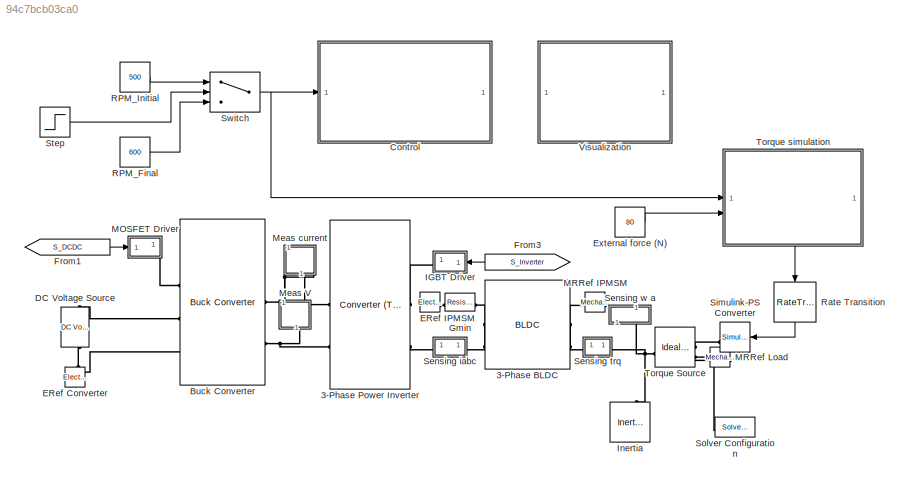
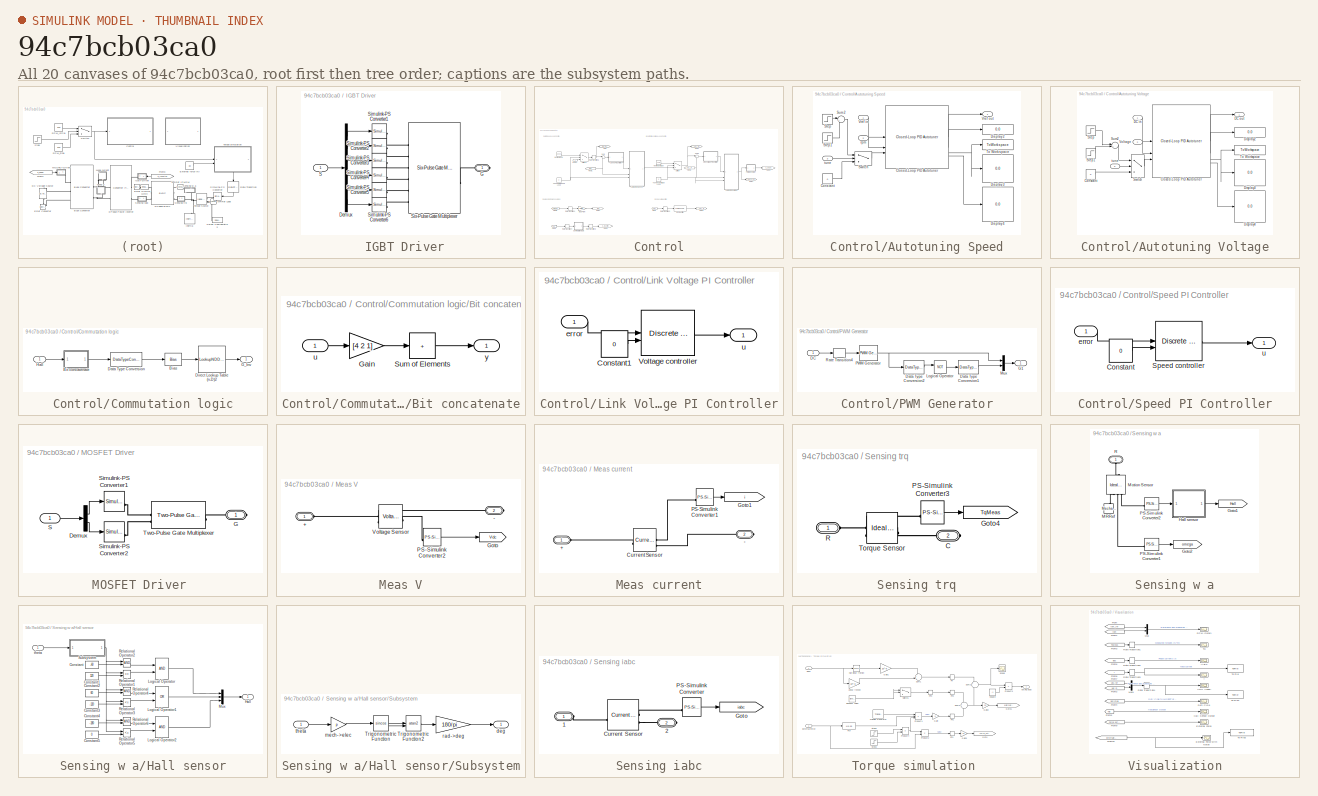
[diagram: thumbnail index - all 20 canvases of the model, root first then tree order]
MODEL slx_94c7bcb03ca0
KIND model
CONFIG AbsTol = auto
CONFIG EnableMultiTasking = on
CONFIG FixedStep = Ts
CONFIG MaxStep = auto
CONFIG MinStep = auto
CONFIG PreLoadFcn = %% Parameters for BLDC Speed Control Example\n\n% This example shows how to control the rotor speed in a BLDC based \n% electrical drive. An ideal torque source provides the load. The Control \n% subsystem uses a PI-based cascade control structure with an outer speed \n% control loop and an inner dc-link voltage control loop. The dc-link \n% voltage is adjusted through a DC-DC buck converter. The BLDC i...<+1036ch>
CONFIG RelTol = 1e-3
CONFIG SampleTimeConstraint = Unconstrained
CONFIG SolverName = FixedStepDiscrete
CONFIG StartTime = 0.0
CONFIG StopTime = 1
BLOCK [Reference]  DC Voltage Source  REF=fl_lib/Electrical/Electrical Sources/DC Voltage Source
  NameLocation = left
  SourceBlock = fl_lib/Electrical/Electrical Sources/DC Voltage Source
  SourceType = DC Voltage Source
BLOCK [SubSystem]  IGBT Driver
  NameLocation = top
BLOCK [Demux]  IGBT Driver/Demux
  Outputs = 6
BLOCK [PMIOPort]  IGBT Driver/G
  Side = Right
BLOCK [Inport]  IGBT Driver/S
BLOCK [Reference]  IGBT Driver/Simulink-PS Converter1  REF=nesl_utility/Simulink-PS
Converter
  SourceBlock = nesl_utility/Simulink-PS\nConverter
  SourceType = Simulink-PS\nConverter
BLOCK [Reference]  IGBT Driver/Simulink-PS Converter2  REF=nesl_utility/Simulink-PS
Converter
  SourceBlock = nesl_utility/Simulink-PS\nConverter
  SourceType = Simulink-PS\nConverter
BLOCK [Reference]  IGBT Driver/Simulink-PS Converter3  REF=nesl_utility/Simulink-PS
Converter
  SourceBlock = nesl_utility/Simulink-PS\nConverter
  SourceType = Simulink-PS\nConverter
BLOCK [Reference]  IGBT Driver/Simulink-PS Converter4  REF=nesl_utility/Simulink-PS
Converter
  SourceBlock = nesl_utility/Simulink-PS\nConverter
  SourceType = Simulink-PS\nConverter
BLOCK [Reference]  IGBT Driver/Simulink-PS Converter5  REF=nesl_utility/Simulink-PS
Converter
  SourceBlock = nesl_utility/Simulink-PS\nConverter
  SourceType = Simulink-PS\nConverter
BLOCK [Reference]  IGBT Driver/Simulink-PS Converter6  REF=nesl_utility/Simulink-PS
Converter
  SourceBlock = nesl_utility/Simulink-PS\nConverter
  SourceType = Simulink-PS\nConverter
BLOCK [Reference]  IGBT Driver/Six-Pulse Gate Multiplexer  REF=ee_lib/Semiconductors &
Converters/Converters/Six-Pulse Gate
Multiplexer
  SourceBlock = ee_lib/Semiconductors &\nConverters/Converters/Six-Pulse Gate\nMultiplexer
  SourceType = Six-Pulse Gate\nMultiplexer
BLOCK [Reference] 3-Phase BLDC  REF=ee_lib/Electromechanical/Permanent Magnet/BLDC
  SourceBlock = ee_lib/Electromechanical/Permanent Magnet/BLDC
  SourceType = BLDC
BLOCK [Reference] 3-Phase Power Inverter  REF=ee_lib/Semiconductors &
Converters/Converters/Converter
(Three-Phase)
  SourceBlock = ee_lib/Semiconductors &\nConverters/Converters/Converter\n(Three-Phase)
  SourceType = Converter\n(Three-Phase)
BLOCK [Reference] Buck Converter  REF=ee_lib/Semiconductors &
Converters/Converters/Buck Converter
  SourceBlock = ee_lib/Semiconductors &\nConverters/Converters/Buck Converter
  SourceType = Buck Converter
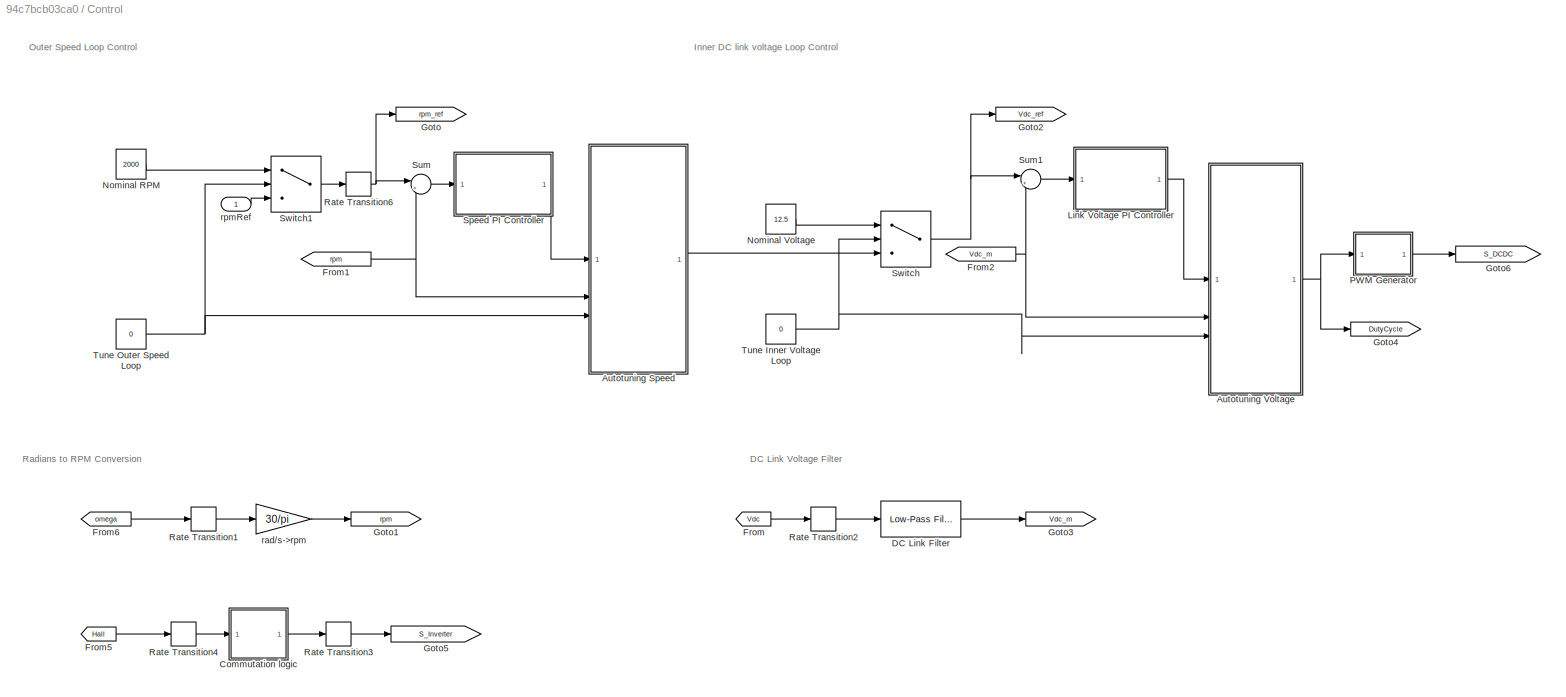
BLOCK [SubSystem] Control
  NameLocation = top
BLOCK [SubSystem] Control/Autotuning Speed
BLOCK [Reference] Control/Autotuning Speed/Closed-Loop PID Autotuner  REF=slctrl_autotuning/Closed-Loop PID Autotuner
  SourceBlock = slctrl_autotuning/Closed-Loop PID Autotuner
  SourceType = ClosedLoopOnlinePIDTuner
BLOCK [Constant] Control/Autotuning Speed/Constant
  Value = 0
BLOCK [Display] Control/Autotuning Speed/Display2
  Decimation = 1
BLOCK [Display] Control/Autotuning Speed/Display3
  Decimation = 1
BLOCK [Display] Control/Autotuning Speed/Display4
  Decimation = 1
BLOCK [Step] Control/Autotuning Speed/Step
  SampleTime = 0
BLOCK [Step] Control/Autotuning Speed/Step1
  After = -1
  SampleTime = 0
  Time = 1.9
BLOCK [Sum] Control/Autotuning Speed/Sum2
  Inputs = |++
BLOCK [Switch] Control/Autotuning Speed/Switch
  Criteria = u2 > Threshold
  InputSameDT = off
  SaturateOnIntegerOverflow = off
BLOCK [ToWorkspace] Control/Autotuning Speed/To Workspace
  FixptAsFi = on
  MaxDataPoints = 1
  SampleTime = -1
  VariableName = SpeedLoopGains
BLOCK [Inport] Control/Autotuning Speed/Vref in
BLOCK [Outport] Control/Autotuning Speed/Vref out
  VectorParamsAs1DForOutWhenUnconnected = off
BLOCK [Inport] Control/Autotuning Speed/rpm
  Port = 2
BLOCK [Inport] Control/Autotuning Speed/tune
  Port = 3
BLOCK [SubSystem] Control/Autotuning Voltage
BLOCK [Reference] Control/Autotuning Voltage/Closed-Loop PID Autotuner  REF=slctrl_autotuning/Closed-Loop PID Autotuner
  SourceBlock = slctrl_autotuning/Closed-Loop PID Autotuner
  SourceType = ClosedLoopOnlinePIDTuner
BLOCK [Constant] Control/Autotuning Voltage/Constant
  Value = 0
BLOCK [Inport] Control/Autotuning Voltage/DC in
BLOCK [Outport] Control/Autotuning Voltage/DC out
  VectorParamsAs1DForOutWhenUnconnected = off
BLOCK [Display] Control/Autotuning Voltage/Display2
  Decimation = 1
BLOCK [Display] Control/Autotuning Voltage/Display3
  Decimation = 1
BLOCK [Display] Control/Autotuning Voltage/Display4
  Decimation = 1
BLOCK [Step] Control/Autotuning Voltage/Step
  SampleTime = 0
BLOCK [Step] Control/Autotuning Voltage/Step1
  After = -1
  SampleTime = 0
  Time = 1.8
BLOCK [Sum] Control/Autotuning Voltage/Sum2
  Inputs = |++
BLOCK [Switch] Control/Autotuning Voltage/Switch
  Criteria = u2 > Threshold
  InputSameDT = off
  SaturateOnIntegerOverflow = off
BLOCK [ToWorkspace] Control/Autotuning Voltage/To Workspace
  FixptAsFi = on
  MaxDataPoints = 1
  SampleTime = -1
  VariableName = VoltageLoopGains
BLOCK [Inport] Control/Autotuning Voltage/Voltage
  Port = 2
BLOCK [Inport] Control/Autotuning Voltage/tune
  Port = 3
BLOCK [SubSystem] Control/Commutation logic
BLOCK [Bias] Control/Commutation logic/Bias
  Bias = -1
  SaturateOnIntegerOverflow = off
BLOCK [SubSystem] Control/Commutation logic/Bit concatenate
BLOCK [Gain] Control/Commutation logic/Bit concatenate/Gain
  Gain = [4 2 1]
  Multiplication = Matrix(K*u)
BLOCK [Sum] Control/Commutation logic/Bit concatenate/Sum of Elements
  IconShape = rectangular
  Inputs = +
BLOCK [Inport] Control/Commutation logic/Bit concatenate/u
BLOCK [Outport] Control/Commutation logic/Bit concatenate/y
  VectorParamsAs1DForOutWhenUnconnected = off
BLOCK [DataTypeConversion] Control/Commutation logic/Data Type Conversion
  RndMeth = Floor
  SaturateOnIntegerOverflow = off
BLOCK [LookupNDDirect] Control/Commutation logic/Direct Lookup Table (n-D)2
  InputsSelectThisObjectFromTable = Vector
  Table = [0 0 0 1 1 0;0 1 1 0 0 0;0 1 0 0 0 1;1 0 0 0 1 0;1 0 1 0 0 0;0 0 0 1 0 1]
BLOCK [Outport] Control/Commutation logic/G_Inv
  VectorParamsAs1DForOutWhenUnconnected = off
BLOCK [Inport] Control/Commutation logic/Hall
BLOCK [Reference] Control/DC Link Filter  REF=eeGeneralControl/Low-Pass Filter
(Discrete or Continuous)
  SourceBlock = eeGeneralControl/Low-Pass Filter\n(Discrete or Continuous)
  SourceType = Low-Pass Filter (Discrete or Continuous)
BLOCK [From] Control/From
  GotoTag = Vdc
  TagVisibility = global
BLOCK [From] Control/From1
  GotoTag = rpm
  TagVisibility = global
BLOCK [From] Control/From2
  GotoTag = Vdc_m
  TagVisibility = global
BLOCK [From] Control/From5
  GotoTag = Hall
  TagVisibility = global
BLOCK [From] Control/From6
  GotoTag = omega
  TagVisibility = global
BLOCK [Goto] Control/Goto
  GotoTag = rpm_ref
  TagVisibility = global
BLOCK [Goto] Control/Goto1
  GotoTag = rpm
  TagVisibility = global
BLOCK [Goto] Control/Goto2
  GotoTag = Vdc_ref
  TagVisibility = global
BLOCK [Goto] Control/Goto3
  GotoTag = Vdc_m
  TagVisibility = global
BLOCK [Goto] Control/Goto4
  GotoTag = DutyCycle
  TagVisibility = global
BLOCK [Goto] Control/Goto5
  GotoTag = S_Inverter
  TagVisibility = global
BLOCK [Goto] Control/Goto6
  GotoTag = S_DCDC
  TagVisibility = global
BLOCK [SubSystem] Control/Link Voltage PI Controller
BLOCK [Constant] Control/Link Voltage PI Controller/Constant1
  SampleTime = Tsc
  Value = 0
BLOCK [Reference] Control/Link Voltage PI Controller/Voltage controller  REF=eeDiscretePi/Discrete PI Controller
with Integral Anti-Windup
  SourceBlock = eeDiscretePi/Discrete PI Controller\nwith Integral Anti-Windup
  SourceType = Discrete PI Controller with Integral Anti-Windup
BLOCK [Inport] Control/Link Voltage PI Controller/error
BLOCK [Outport] Control/Link Voltage PI Controller/u
  VectorParamsAs1DForOutWhenUnconnected = off
BLOCK [Constant] Control/Nominal RPM
  Value = 2000
BLOCK [Constant] Control/Nominal Voltage
  Value = 12.5
BLOCK [SubSystem] Control/PWM Generator
BLOCK [Inport] Control/PWM Generator/DC
BLOCK [DataTypeConversion] Control/PWM Generator/Data Type Conversion1
  RndMeth = Floor
  SaturateOnIntegerOverflow = off
BLOCK [DataTypeConversion] Control/PWM Generator/Data Type Conversion2
  RndMeth = Floor
  SaturateOnIntegerOverflow = off
BLOCK [Outport] Control/PWM Generator/G1
  VectorParamsAs1DForOutWhenUnconnected = off
BLOCK [Logic] Control/PWM Generator/Logical Operator
  AllPortsSameDT = off
  Operator = NOT
  OutDataTypeStr = boolean
BLOCK [Mux] Control/PWM Generator/Mux
  DisplayOption = bar
  Inputs = 2
BLOCK [Reference] Control/PWM Generator/PWM Generator  REF=eePwmGenerator/PWM Generator
  SourceBlock = eePwmGenerator/PWM Generator
  SourceType = PWM Generator
BLOCK [RateTransition] Control/PWM Generator/Rate Transition4
  OutPortSampleTime = Ts
BLOCK [RateTransition] Control/Rate Transition1
BLOCK [RateTransition] Control/Rate Transition2
BLOCK [RateTransition] Control/Rate Transition3
  OutPortSampleTime = Ts
BLOCK [RateTransition] Control/Rate Transition4
  OutPortSampleTime = Tsc
BLOCK [RateTransition] Control/Rate Transition6
BLOCK [SubSystem] Control/Speed PI Controller
BLOCK [Constant] Control/Speed PI Controller/Constant
  SampleTime = Tsc
  Value = 0
BLOCK [Reference] Control/Speed PI Controller/Speed controller  REF=eeDiscretePi/Discrete PI Controller
with Integral Anti-Windup
  SourceBlock = eeDiscretePi/Discrete PI Controller\nwith Integral Anti-Windup
  SourceType = Discrete PI Controller with Integral Anti-Windup
BLOCK [Inport] Control/Speed PI Controller/error
BLOCK [Outport] Control/Speed PI Controller/u
  VectorParamsAs1DForOutWhenUnconnected = off
BLOCK [Sum] Control/Sum
  Inputs = |+-
BLOCK [Sum] Control/Sum1
  Inputs = |+-
BLOCK [Switch] Control/Switch
  Criteria = u2 > Threshold
  InputSameDT = off
  SaturateOnIntegerOverflow = off
BLOCK [Switch] Control/Switch1
  Criteria = u2 > Threshold
  InputSameDT = off
  SaturateOnIntegerOverflow = off
BLOCK [Constant] Control/Tune Inner Voltage Loop
  Value = 0
BLOCK [Constant] Control/Tune Outer Speed Loop
  Value = 0
BLOCK [Gain] Control/rad//s->rpm
  Gain = 30/pi
BLOCK [Inport] Control/rpmRef
BLOCK [Reference] ERef Converter  REF=fl_lib/Electrical/Electrical Elements/Electrical Reference
  NameLocation = right
  SourceBlock = fl_lib/Electrical/Electrical Elements/Electrical Reference
  SourceType = Electrical Reference
BLOCK [Reference] ERef IPMSM  REF=fl_lib/Electrical/Electrical Elements/Electrical Reference
  SourceBlock = fl_lib/Electrical/Electrical Elements/Electrical Reference
  SourceType = Electrical Reference
BLOCK [Constant] External force (N)
  Value = 80
BLOCK [From] From1
  GotoTag = S_DCDC
  TagVisibility = global
BLOCK [From] From3
  GotoTag = S_Inverter
  NameLocation = top
  TagVisibility = global
BLOCK [Reference] Gmin  REF=fl_lib/Electrical/Electrical Elements/Resistor
  SourceBlock = fl_lib/Electrical/Electrical Elements/Resistor
  SourceType = Resistor
BLOCK [Reference] Inertia  REF=fl_lib/Mechanical/Rotational Elements/Inertia
  NameLocation = left
  SourceBlock = fl_lib/Mechanical/Rotational Elements/Inertia
  SourceType = Inertia
BLOCK [SubSystem] MOSFET Driver 
  NameLocation = top
BLOCK [Demux] MOSFET Driver /Demux
  Outputs = 2
BLOCK [PMIOPort] MOSFET Driver /G
  Side = Right
BLOCK [Inport] MOSFET Driver /S
BLOCK [Reference] MOSFET Driver /Simulink-PS Converter1  REF=nesl_utility/Simulink-PS
Converter
  SourceBlock = nesl_utility/Simulink-PS\nConverter
  SourceType = Simulink-PS\nConverter
BLOCK [Reference] MOSFET Driver /Simulink-PS Converter2  REF=nesl_utility/Simulink-PS
Converter
  SourceBlock = nesl_utility/Simulink-PS\nConverter
  SourceType = Simulink-PS\nConverter
BLOCK [Reference] MOSFET Driver /Two-Pulse Gate Multiplexer  REF=ee_lib/Semiconductors &
Converters/Converters/Two-Pulse Gate
Multiplexer
  SourceBlock = ee_lib/Semiconductors &\nConverters/Converters/Two-Pulse Gate\nMultiplexer
  SourceType = Two-Pulse Gate\nMultiplexer
BLOCK [Reference] MRRef IPMSM  REF=fl_lib/Mechanical/Rotational Elements/Mechanical
Rotational Reference
  NameLocation = top
  SourceBlock = fl_lib/Mechanical/Rotational Elements/Mechanical\nRotational Reference
  SourceType = Mechanical\nRotational Reference
BLOCK [Reference] MRRef Load  REF=fl_lib/Mechanical/Rotational Elements/Mechanical
Rotational Reference
  NameLocation = top
  SourceBlock = fl_lib/Mechanical/Rotational Elements/Mechanical\nRotational Reference
  SourceType = Mechanical\nRotational Reference
BLOCK [SubSystem] Meas V
  NameLocation = right
BLOCK [PMIOPort] Meas V/+
  Side = Left
BLOCK [PMIOPort] Meas V/-
  Port = 2
  Side = Right
BLOCK [Goto] Meas V/Goto
  GotoTag = Vdc
  TagVisibility = global
BLOCK [Reference] Meas V/PS-Simulink Converter2  REF=nesl_utility/PS-Simulink
Converter
  SourceBlock = nesl_utility/PS-Simulink\nConverter
  SourceType = PS-Simulink\nConverter
BLOCK [Reference] Meas V/Voltage Sensor  REF=fl_lib/Electrical/Electrical Sensors/Voltage Sensor
  NameLocation = top
  SourceBlock = fl_lib/Electrical/Electrical Sensors/Voltage Sensor
  SourceType = Voltage Sensor
BLOCK [SubSystem] Meas current
  NameLocation = right
  PortSchema = {"entries":[{"content":{"sides":[{"content":{},"type":"ConnectorPlacement.EquallySpacedRectSide","uuid":"82ca6d8b-4f1d-482c-9132-345f1111dd8f"},{"content":{"side":"RIGHT"},"type":"ConnectorPlacement.EquallySpacedRectSide","uuid":"46eb7c2e-5f99-46a8-b5a6-ad4c053dfe5d"},{"content":{"connectorIds":["LConn1"],"side":"TOP"},"type":"ConnectorPlacement.EquallySpacedRectSide","uuid":"5837dc94-a870-4fd0-9d...<+354ch>
BLOCK [PMIOPort] Meas current/+
  Side = Left
BLOCK [PMIOPort] Meas current/-
  Port = 2
  Side = Right
BLOCK [Reference] Meas current/Current Sensor  REF=fl_lib/Electrical/Electrical Sensors/Current Sensor
  SourceBlock = fl_lib/Electrical/Electrical Sensors/Current Sensor
  SourceType = Current Sensor
BLOCK [Goto] Meas current/Goto1
  GotoTag = i
  TagVisibility = global
BLOCK [Reference] Meas current/PS-Simulink Converter1  REF=nesl_utility/PS-Simulink
Converter
  SourceBlock = nesl_utility/PS-Simulink\nConverter
  SourceType = PS-Simulink\nConverter
BLOCK [Constant] RPM_Final
  Value = 600
BLOCK [Constant] RPM_Initial
  Value = 500
BLOCK [RateTransition] Rate Transition
  NameLocation = left
  OutPortSampleTimeOpt = Inherit
BLOCK [SubSystem] Sensing iabc
BLOCK [PMIOPort] Sensing iabc/1
  Side = Left
BLOCK [PMIOPort] Sensing iabc/2
  Port = 2
  Side = Right
BLOCK [Reference] Sensing iabc/Current Sensor  REF=ee_lib/Sensors &
Transducers/Current Sensor
(Three-Phase)
  SourceBlock = ee_lib/Sensors &\nTransducers/Current Sensor\n(Three-Phase)
  SourceType = Current Sensor\n(Three-Phase)
BLOCK [Goto] Sensing iabc/Goto
  GotoTag = iabc
  TagVisibility = global
BLOCK [Reference] Sensing iabc/PS-Simulink Converter  REF=nesl_utility/PS-Simulink
Converter
  SourceBlock = nesl_utility/PS-Simulink\nConverter
  SourceType = PS-Simulink\nConverter
BLOCK [SubSystem] Sensing trq
BLOCK [PMIOPort] Sensing trq/C
  Port = 2
  Side = Right
BLOCK [Goto] Sensing trq/Goto4
  GotoTag = TqMeas
  TagVisibility = global
BLOCK [Reference] Sensing trq/PS-Simulink Converter3  REF=nesl_utility/PS-Simulink
Converter
  SourceBlock = nesl_utility/PS-Simulink\nConverter
  SourceType = PS-Simulink\nConverter
BLOCK [PMIOPort] Sensing trq/R
  Side = Left
BLOCK [Reference] Sensing trq/Torque Sensor  REF=fl_lib/Mechanical/Mechanical Sensors/Ideal Torque Sensor
  SourceBlock = fl_lib/Mechanical/Mechanical Sensors/Ideal Torque Sensor
  SourceType = Ideal Torque Sensor
BLOCK [SubSystem] Sensing w a
  NameLocation = right
BLOCK [Goto] Sensing w a/Goto1
  GotoTag = Hall
  TagVisibility = global
BLOCK [Goto] Sensing w a/Goto2
  GotoTag = omega
  TagVisibility = global
BLOCK [SubSystem] Sensing w a/Hall sensor
BLOCK [Constant] Sensing w a/Hall sensor/Constant
  Value = -60
BLOCK [Constant] Sensing w a/Hall sensor/Constant1
  Value = 120
BLOCK [Constant] Sensing w a/Hall sensor/Constant2
  Value = 60
BLOCK [Constant] Sensing w a/Hall sensor/Constant3
  Value = -120
BLOCK [Constant] Sensing w a/Hall sensor/Constant4
  Value = -180
BLOCK [Constant] Sensing w a/Hall sensor/Constant5
  Value = 0
BLOCK [Outport] Sensing w a/Hall sensor/Hall
  VectorParamsAs1DForOutWhenUnconnected = off
BLOCK [Logic] Sensing w a/Hall sensor/Logical Operator
  AllPortsSameDT = off
  OutDataTypeStr = boolean
BLOCK [Logic] Sensing w a/Hall sensor/Logical Operator1
  AllPortsSameDT = off
  Operator = OR
  OutDataTypeStr = boolean
BLOCK [Logic] Sensing w a/Hall sensor/Logical Operator2
  AllPortsSameDT = off
  OutDataTypeStr = boolean
BLOCK [Mux] Sensing w a/Hall sensor/Mux
  DisplayOption = bar
  Inputs = 3
BLOCK [RelationalOperator] Sensing w a/Hall sensor/Relational Operator1
  Operator = <=
BLOCK [RelationalOperator] Sensing w a/Hall sensor/Relational Operator2
BLOCK [RelationalOperator] Sensing w a/Hall sensor/Relational Operator3
  Operator = <=
BLOCK [RelationalOperator] Sensing w a/Hall sensor/Relational Operator4
BLOCK [RelationalOperator] Sensing w a/Hall sensor/Relational Operator5
  Operator = <=
BLOCK [RelationalOperator] Sensing w a/Hall sensor/Relational Operator6
BLOCK [SubSystem] Sensing w a/Hall sensor/Subsystem
BLOCK [Trigonometry] Sensing w a/Hall sensor/Subsystem/Trigonometric Function
  Operator = sincos
BLOCK [Trigonometry] Sensing w a/Hall sensor/Subsystem/Trigonometric Function2
  Operator = atan2
BLOCK [Outport] Sensing w a/Hall sensor/Subsystem/deg
  VectorParamsAs1DForOutWhenUnconnected = off
BLOCK [Gain] Sensing w a/Hall sensor/Subsystem/mech->elec
  Gain = p
BLOCK [Gain] Sensing w a/Hall sensor/Subsystem/rad->deg
  Gain = 180/pi
  OutDataTypeStr = Inherit: Same as input
  ParamDataTypeStr = Inherit: Same as input
  SaturateOnIntegerOverflow = on
BLOCK [Inport] Sensing w a/Hall sensor/Subsystem/theta
BLOCK [Inport] Sensing w a/Hall sensor/theta
BLOCK [Reference] Sensing w a/MRRef  REF=fl_lib/Mechanical/Rotational Elements/Mechanical
Rotational Reference
  NameLocation = left
  SourceBlock = fl_lib/Mechanical/Rotational Elements/Mechanical\nRotational Reference
  SourceType = Mechanical\nRotational Reference
BLOCK [Reference] Sensing w a/Motion Sensor  REF=fl_lib/Mechanical/Mechanical Sensors/Ideal Rotational
Motion Sensor
  NameLocation = right
  SourceBlock = fl_lib/Mechanical/Mechanical Sensors/Ideal Rotational\nMotion Sensor
  SourceType = Ideal Rotational\nMotion Sensor
BLOCK [Reference] Sensing w a/PS-Simulink Converter1  REF=nesl_utility/PS-Simulink
Converter
  SourceBlock = nesl_utility/PS-Simulink\nConverter
  SourceType = PS-Simulink\nConverter
BLOCK [Reference] Sensing w a/PS-Simulink Converter2  REF=nesl_utility/PS-Simulink
Converter
  SourceBlock = nesl_utility/PS-Simulink\nConverter
  SourceType = PS-Simulink\nConverter
BLOCK [PMIOPort] Sensing w a/R
  NameLocation = right
  Side = Left
BLOCK [Reference] Simulink-PS Converter  REF=nesl_utility/Simulink-PS
Converter
  SourceBlock = nesl_utility/Simulink-PS\nConverter
  SourceType = Simulink-PS\nConverter
BLOCK [Reference] Solver Configuration  REF=nesl_utility/Solver
Configuration
  SourceBlock = nesl_utility/Solver\nConfiguration
  SourceType = Solver\nConfiguration
BLOCK [Step] Step
  After = 0
  Before = 1
  SampleTime = 0
  Time = 0.3
BLOCK [Switch] Switch
  Criteria = u2 > Threshold
  InputSameDT = off
  SaturateOnIntegerOverflow = off
BLOCK [Reference] Torque Source  REF=fl_lib/Mechanical/Mechanical Sources/Ideal Torque Source
  SourceBlock = fl_lib/Mechanical/Mechanical Sources/Ideal Torque Source
  SourceType = Ideal Torque Source
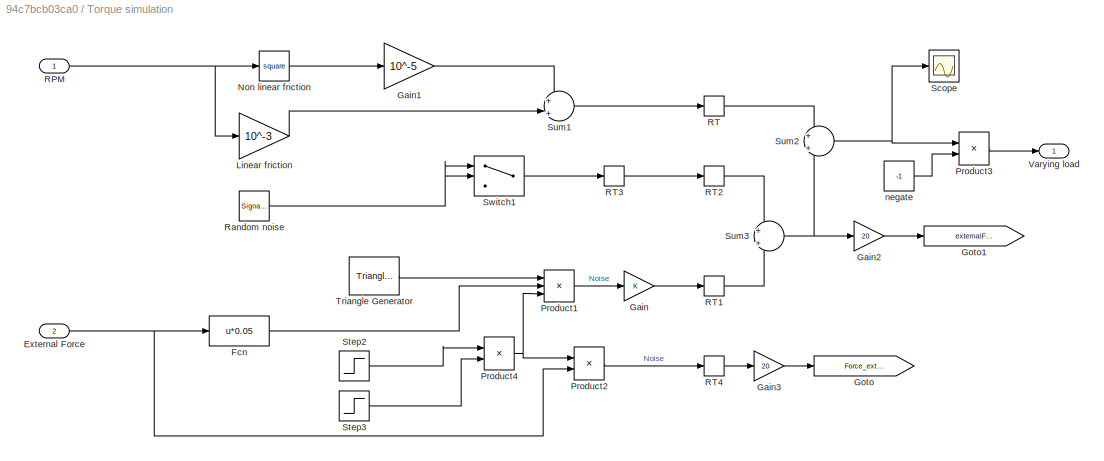
BLOCK [SubSystem] Torque simulation 
  PortSchema = {"entries":[{"content":{"sides":[{"content":{"connectorIds":["In1","In2"]},"type":"ConnectorPlacement.EquallySpacedRectSide","uuid":"4de94c05-994b-4a6b-aa57-8a8325026801"},{"content":{"side":"RIGHT"},"type":"ConnectorPlacement.EquallySpacedRectSide","uuid":"9aab4c8e-5a08-4361-b962-7ff1ea4c45cd"},{"content":{"side":"TOP"},"type":"ConnectorPlacement.EquallySpacedRectSide","uuid":"3907e8e7-ade8-4b6d-...<+354ch>
BLOCK [Inport] Torque simulation /External Force
  Port = 2
BLOCK [Fcn] Torque simulation /Fcn
  Expr = u*0.05
BLOCK [Gain] Torque simulation /Gain
BLOCK [Gain] Torque simulation /Gain1
  Gain = 10^-5
BLOCK [Gain] Torque simulation /Gain2
  Gain = 20
BLOCK [Gain] Torque simulation /Gain3
  Gain = 20
BLOCK [Goto] Torque simulation /Goto
  GotoTag = Force_external
  TagVisibility = global
BLOCK [Goto] Torque simulation /Goto1
  GotoTag = externalForce_Noise
  TagVisibility = global
BLOCK [Gain] Torque simulation /Linear friction
  Gain = 10^-3
BLOCK [Math] Torque simulation /Non linear friction
  Operator = square
BLOCK [Product] Torque simulation /Product1
  Inputs = 3
BLOCK [Product] Torque simulation /Product2
BLOCK [Product] Torque simulation /Product3
BLOCK [Product] Torque simulation /Product4
BLOCK [Inport] Torque simulation /RPM
BLOCK [RateTransition] Torque simulation /RT
  OutPortSampleTime = 1e-03
BLOCK [RateTransition] Torque simulation /RT1
  OutPortSampleTime = 1e-03
BLOCK [RateTransition] Torque simulation /RT2
  OutPortSampleTime = 1e-03
BLOCK [RateTransition] Torque simulation /RT3
  OutPortSampleTime = 0.5e-02
BLOCK [RateTransition] Torque simulation /RT4
  OutPortSampleTime = 1e-03
BLOCK [SignalGenerator] Torque simulation /Random noise 
  Amplitude = 0.5
  Frequency = 0.5
  NameLocation = top
  WaveForm = random
BLOCK [Scope] Torque simulation /Scope
  Floating = off
  NumInputPorts = 1
  ScopeSpecificationString = Simulink.scopes.TimeScopeBlockCfg('CurrentConfiguration', extmgr.ConfigurationSet(extmgr.Configuration('Core','General UI',true,'FigureColor',[1 1 1]),extmgr.Configuration('Core','Source UI',true),extmgr.Configuration('Sources','WiredSimulink',true,'DataLoggingVariableName','ScopeData1'),extmgr.Configuration('Visuals','Time Domain',true,'SerializedDisplays',{struct('MinYLimReal','2.34168','MaxYLim...<+1579ch>
BLOCK [Step] Torque simulation /Step2
  SampleTime = 0
  Time = 0.5
BLOCK [Step] Torque simulation /Step3
  After = 0
  Before = 1
  SampleTime = 0
  Time = 0.75
BLOCK [Sum] Torque simulation /Sum1
  Inputs = +|+
BLOCK [Sum] Torque simulation /Sum2
  Inputs = +|+
BLOCK [Sum] Torque simulation /Sum3
  Inputs = +|+
BLOCK [Switch] Torque simulation /Switch1
  Criteria = u2 > Threshold
  InputSameDT = off
  SaturateOnIntegerOverflow = off
BLOCK [Reference] Torque simulation /Triangle Generator  REF=spsTriangleGeneratorLib/Triangle
Generator
  LibrarySourceBlock = sps_lib/Sources/Signal Generator Sources/Triangle\nGenerator
  SourceBlock = spsTriangleGeneratorLib/Triangle\nGenerator
  SourceType = Triangle Generator
BLOCK [Outport] Torque simulation /Varying load
BLOCK [Constant] Torque simulation /negate
  Value = -1
BLOCK [SubSystem] Visualization
BLOCK [Scope] Visualization/Duty Cycle
  Floating = off
  NumInputPorts = 1
  ScopeSpecificationString = Simulink.scopes.TimeScopeBlockCfg('CurrentConfiguration', extmgr.ConfigurationSet(extmgr.Configuration('Core','General UI',true),extmgr.Configuration('Core','Source UI',true),extmgr.Configuration('Sources','WiredSimulink',true,'DataLoggingVariableName','ScopeData1','DataLoggingSaveFormat','Array','DataLoggingDecimation','1','DataLoggingDecimateData',true),extmgr.Configuration('Visuals','Time Domai...<+1561ch>
BLOCK [Scope] Visualization/External Force
  Floating = off
  NumInputPorts = 1
  ScopeSpecificationString = Simulink.scopes.TimeScopeBlockCfg('CurrentConfiguration', extmgr.ConfigurationSet(extmgr.Configuration('Core','General UI',true),extmgr.Configuration('Core','Source UI',true),extmgr.Configuration('Sources','WiredSimulink',true,'DataLoggingVariableName','ScopeData2'),extmgr.Configuration('Visuals','Time Domain',true,'SerializedDisplays',{struct('MinYLimReal','-200.00000','MaxYLimReal','1800.00000',...<+1455ch>
BLOCK [Scope] Visualization/External Force with Noise
  Floating = off
  NumInputPorts = 1
  ScopeSpecificationString = Simulink.scopes.TimeScopeBlockCfg('CurrentConfiguration', extmgr.ConfigurationSet(extmgr.Configuration('Core','General UI',true),extmgr.Configuration('Core','Source UI',true),extmgr.Configuration('Sources','WiredSimulink',true,'DataLoggingVariableName','ScopeData1'),extmgr.Configuration('Visuals','Time Domain',true,'SerializedDisplays',{struct('MinYLimReal','-10.16643','MaxYLimReal','91.4979','YLa...<+1439ch>
BLOCK [From] Visualization/From
  GotoTag = rpm_ref
  TagVisibility = global
BLOCK [From] Visualization/From1
  GotoTag = rpm
  TagVisibility = global
BLOCK [From] Visualization/From10
  GotoTag = externalForce_Noise
  TagVisibility = global
BLOCK [From] Visualization/From2
  GotoTag = Vdc_m
  TagVisibility = global
BLOCK [From] Visualization/From3
  GotoTag = TqMeas
  TagVisibility = global
BLOCK [From] Visualization/From4
  GotoTag = DutyCycle
  TagVisibility = global
BLOCK [From] Visualization/From5
  GotoTag = Hall
  TagVisibility = global
BLOCK [From] Visualization/From6
  GotoTag = iabc
  TagVisibility = global
BLOCK [From] Visualization/From7
  GotoTag = Vdc_ref
  TagVisibility = global
BLOCK [From] Visualization/From8
  GotoTag = i
  TagVisibility = global
BLOCK [From] Visualization/From9
  GotoTag = Force_external
  TagVisibility = global
BLOCK [Scope] Visualization/Hall Sensor Output
  Floating = off
  NumInputPorts = 1
  ScopeSpecificationString = Simulink.scopes.TimeScopeBlockCfg('CurrentConfiguration', extmgr.ConfigurationSet(extmgr.Configuration('Core','General UI',true),extmgr.Configuration('Core','Source UI',true),extmgr.Configuration('Sources','WiredSimulink',true,'DataLoggingVariableName','ScopeData1'),extmgr.Configuration('Visuals','Time Domain',true,'SerializedDisplays',{struct('MinYLimReal','-0.125','MaxYLimReal','1.125','YLabelRe...<+1469ch>
BLOCK [Scope] Visualization/IABC
  Floating = off
  NumInputPorts = 1
  ScopeSpecificationString = Simulink.scopes.TimeScopeBlockCfg('CurrentConfiguration', extmgr.ConfigurationSet(extmgr.Configuration('Core','General UI',true),extmgr.Configuration('Core','Source UI',true),extmgr.Configuration('Sources','WiredSimulink',true,'DataLoggingVariableName','ScopeData1','DataLoggingSaveFormat','Array','DataLoggingDecimation','1','DataLoggingDecimateData',true),extmgr.Configuration('Visuals','Time Domai...<+1671ch>
BLOCK [Mux] Visualization/Mux
  DisplayOption = bar
  Inputs = 2
BLOCK [Mux] Visualization/Mux1
  DisplayOption = bar
  Inputs = 2
BLOCK [Scope] Visualization/RPM (Outer)
  Floating = off
  NumInputPorts = 1
  ScopeSpecificationString = Simulink.scopes.TimeScopeBlockCfg('CurrentConfiguration', extmgr.ConfigurationSet(extmgr.Configuration('Core','General UI',true,'FigureColor',[1 1 1]),extmgr.Configuration('Core','Source UI',true),extmgr.Configuration('Sources','WiredSimulink',true,'DataLoggingVariableName','ScopeData5','DataLoggingSaveFormat','Array','DataLoggingDecimation','1','DataLoggingDecimateData',true),extmgr.Configuration...<+1993ch>
BLOCK [RateTransition] Visualization/Rate Transition1
BLOCK [RateTransition] Visualization/Rate Transition2
  OutPortSampleTime = 1e-3
BLOCK [RateTransition] Visualization/Rate Transition3
  OutPortSampleTime = 1e-3
BLOCK [RateTransition] Visualization/Rate Transition4
  OutPortSampleTime = 1e-3
BLOCK [Scope] Visualization/TQ
  Floating = off
  NumInputPorts = 1
  ScopeSpecificationString = Simulink.scopes.TimeScopeBlockCfg('CurrentConfiguration', extmgr.ConfigurationSet(extmgr.Configuration('Core','General UI',true),extmgr.Configuration('Core','Source UI',true),extmgr.Configuration('Sources','WiredSimulink',true,'DataLoggingVariableName','ScopeData7','DataLoggingSaveFormat','Array','DataLoggingDecimation','1','DataLoggingDecimateData',true),extmgr.Configuration('Visuals','Time Domai...<+1528ch>
BLOCK [ToFile] Visualization/To File
  Filename = <path>
  MatrixName = i
  SaveFormat = Timeseries
BLOCK [ToFile] Visualization/To File1
  Filename = <path>
  MatrixName = v
  SaveFormat = Timeseries
BLOCK [ToFile] Visualization/To File3
  Filename = <path>
  MatrixName = force
  SaveFormat = Timeseries
BLOCK [Scope] Visualization/VDC (Inner)
  Floating = off
  NumInputPorts = 1
  ScopeSpecificationString = Simulink.scopes.TimeScopeBlockCfg('CurrentConfiguration', extmgr.ConfigurationSet(extmgr.Configuration('Core','General UI',true,'FigureColor',[1 1 1]),extmgr.Configuration('Core','Source UI',true),extmgr.Configuration('Sources','WiredSimulink',true,'DataLoggingVariableName','ScopeData8','DataLoggingSaveFormat','Array','DataLoggingDecimation','1','DataLoggingDecimateData',true),extmgr.Configuration...<+1839ch>
BLOCK [Scope] Visualization/i
  Floating = off
  NumInputPorts = 1
  ScopeSpecificationString = Simulink.scopes.TimeScopeBlockCfg('CurrentConfiguration', extmgr.ConfigurationSet(extmgr.Configuration('Core','General UI',true,'FigureColor',[1 1 1]),extmgr.Configuration('Core','Source UI',true),extmgr.Configuration('Sources','WiredSimulink',true,'DataLoggingVariableName','ScopeData2','DataLoggingSaveFormat','Array','DataLoggingDecimation','1','DataLoggingDecimateData',true),extmgr.Configuration...<+1784ch>
ANNOTATION Control: Inner DC link voltage Loop Control
ANNOTATION Control: DC Link Voltage Filter
ANNOTATION Control: Outer Speed Loop Control
ANNOTATION Control: Radians to RPM Conversion
LINE  IGBT Driver/Demux:1 ->  IGBT Driver/Simulink-PS Converter1:1
LINE  IGBT Driver/Demux:2 ->  IGBT Driver/Simulink-PS Converter2:1
LINE  IGBT Driver/Demux:3 ->  IGBT Driver/Simulink-PS Converter3:1
LINE  IGBT Driver/Demux:4 ->  IGBT Driver/Simulink-PS Converter4:1
LINE  IGBT Driver/Demux:5 ->  IGBT Driver/Simulink-PS Converter5:1
LINE  IGBT Driver/Demux:6 ->  IGBT Driver/Simulink-PS Converter6:1
LINE  IGBT Driver/S:1 ->  IGBT Driver/Demux:1
LINE Control/Autotuning Speed/Closed-Loop PID Autotuner:1 -> Control/Autotuning Speed/Vref out:1
LINE Control/Autotuning Speed/Closed-Loop PID Autotuner:2 -> Control/Autotuning Speed/Display2:1
NET Control/Autotuning Speed/Closed-Loop PID Autotuner:3 -> Control/Autotuning Speed/Display3:1, Control/Autotuning Speed/To Workspace:1
LINE Control/Autotuning Speed/Closed-Loop PID Autotuner:4 -> Control/Autotuning Speed/Display4:1
LINE Control/Autotuning Speed/Constant:1 -> Control/Autotuning Speed/Switch:3
LINE Control/Autotuning Speed/Step1:1 -> Control/Autotuning Speed/Sum2:2
LINE Control/Autotuning Speed/Step:1 -> Control/Autotuning Speed/Sum2:1
LINE Control/Autotuning Speed/Sum2:1 -> Control/Autotuning Speed/Switch:1
LINE Control/Autotuning Speed/Switch:1 -> Control/Autotuning Speed/Closed-Loop PID Autotuner:3
LINE Control/Autotuning Speed/Vref in:1 -> Control/Autotuning Speed/Closed-Loop PID Autotuner:1
LINE Control/Autotuning Speed/rpm:1 -> Control/Autotuning Speed/Closed-Loop PID Autotuner:2
LINE Control/Autotuning Speed/tune:1 -> Control/Autotuning Speed/Switch:2
LINE Control/Autotuning Speed:1 -> Control/Switch:3
LINE Control/Autotuning Voltage/Closed-Loop PID Autotuner:1 -> Control/Autotuning Voltage/DC out:1
LINE Control/Autotuning Voltage/Closed-Loop PID Autotuner:2 -> Control/Autotuning Voltage/Display2:1
NET Control/Autotuning Voltage/Closed-Loop PID Autotuner:3 -> Control/Autotuning Voltage/Display3:1, Control/Autotuning Voltage/To Workspace:1
LINE Control/Autotuning Voltage/Closed-Loop PID Autotuner:4 -> Control/Autotuning Voltage/Display4:1
LINE Control/Autotuning Voltage/Constant:1 -> Control/Autotuning Voltage/Switch:3
LINE Control/Autotuning Voltage/DC in:1 -> Control/Autotuning Voltage/Closed-Loop PID Autotuner:1
LINE Control/Autotuning Voltage/Step1:1 -> Control/Autotuning Voltage/Sum2:2
LINE Control/Autotuning Voltage/Step:1 -> Control/Autotuning Voltage/Sum2:1
LINE Control/Autotuning Voltage/Sum2:1 -> Control/Autotuning Voltage/Switch:1
LINE Control/Autotuning Voltage/Switch:1 -> Control/Autotuning Voltage/Closed-Loop PID Autotuner:3
LINE Control/Autotuning Voltage/Voltage:1 -> Control/Autotuning Voltage/Closed-Loop PID Autotuner:2
LINE Control/Autotuning Voltage/tune:1 -> Control/Autotuning Voltage/Switch:2
NET Control/Autotuning Voltage:1 -> Control/Goto4:1, Control/PWM Generator:1
LINE Control/Commutation logic/Bias:1 -> Control/Commutation logic/Direct Lookup Table (n-D)2:1
LINE Control/Commutation logic/Bit concatenate/Gain:1 -> Control/Commutation logic/Bit concatenate/Sum of Elements:1
LINE Control/Commutation logic/Bit concatenate/Sum of Elements:1 -> Control/Commutation logic/Bit concatenate/y:1
LINE Control/Commutation logic/Bit concatenate/u:1 -> Control/Commutation logic/Bit concatenate/Gain:1
LINE Control/Commutation logic/Bit concatenate:1 -> Control/Commutation logic/Data Type Conversion:1
LINE Control/Commutation logic/Data Type Conversion:1 -> Control/Commutation logic/Bias:1
LINE Control/Commutation logic/Direct Lookup Table (n-D)2:1 -> Control/Commutation logic/G_Inv:1
LINE Control/Commutation logic/Hall:1 -> Control/Commutation logic/Bit concatenate:1
LINE Control/Commutation logic:1 -> Control/Rate Transition3:1
LINE Control/DC Link Filter:1 -> Control/Goto3:1
NET Control/From1:1 -> Control/Autotuning Speed:2, Control/Sum:2
NET Control/From2:1 -> Control/Autotuning Voltage:2, Control/Sum1:2
LINE Control/From5:1 -> Control/Rate Transition4:1
LINE Control/From6:1 -> Control/Rate Transition1:1
LINE Control/From:1 -> Control/Rate Transition2:1
LINE Control/Link Voltage PI Controller/Constant1:1 -> Control/Link Voltage PI Controller/Voltage controller:2
LINE Control/Link Voltage PI Controller/Voltage controller:1 -> Control/Link Voltage PI Controller/u:1
LINE Control/Link Voltage PI Controller/error:1 -> Control/Link Voltage PI Controller/Voltage controller:1
LINE Control/Link Voltage PI Controller:1 -> Control/Autotuning Voltage:1
LINE Control/Nominal RPM:1 -> Control/Switch1:1
LINE Control/Nominal Voltage:1 -> Control/Switch:1
LINE Control/PWM Generator/DC:1 -> Control/PWM Generator/Rate Transition4:1
LINE Control/PWM Generator/Data Type Conversion1:1 -> Control/PWM Generator/Mux:2
LINE Control/PWM Generator/Data Type Conversion2:1 -> Control/PWM Generator/Logical Operator:1
LINE Control/PWM Generator/Logical Operator:1 -> Control/PWM Generator/Data Type Conversion1:1
LINE Control/PWM Generator/Mux:1 -> Control/PWM Generator/G1:1
NET Control/PWM Generator/PWM Generator:1 -> Control/PWM Generator/Data Type Conversion2:1, Control/PWM Generator/Mux:1
LINE Control/PWM Generator/Rate Transition4:1 -> Control/PWM Generator/PWM Generator:1
LINE Control/PWM Generator:1 -> Control/Goto6:1
LINE Control/Rate Transition1:1 -> Control/rad//s->rpm:1
LINE Control/Rate Transition2:1 -> Control/DC Link Filter:1
LINE Control/Rate Transition3:1 -> Control/Goto5:1
LINE Control/Rate Transition4:1 -> Control/Commutation logic:1
NET Control/Rate Transition6:1 -> Control/Goto:1, Control/Sum:1
LINE Control/Speed PI Controller/Constant:1 -> Control/Speed PI Controller/Speed controller:2
LINE Control/Speed PI Controller/Speed controller:1 -> Control/Speed PI Controller/u:1
LINE Control/Speed PI Controller/error:1 -> Control/Speed PI Controller/Speed controller:1
LINE Control/Speed PI Controller:1 -> Control/Autotuning Speed:1
LINE Control/Sum1:1 -> Control/Link Voltage PI Controller:1
LINE Control/Sum:1 -> Control/Speed PI Controller:1
LINE Control/Switch1:1 -> Control/Rate Transition6:1
NET Control/Switch:1 -> Control/Goto2:1, Control/Sum1:1
NET Control/Tune Inner Voltage Loop:1 -> Control/Autotuning Voltage:3, Control/Switch:2
NET Control/Tune Outer Speed Loop:1 -> Control/Autotuning Speed:3, Control/Switch1:2
LINE Control/rad//s->rpm:1 -> Control/Goto1:1
LINE Control/rpmRef:1 -> Control/Switch1:3
LINE External force (N):1 -> Torque simulation :2
LINE From1:1 -> MOSFET Driver :1
LINE From3:1 ->  IGBT Driver:1
LINE MOSFET Driver /Demux:1 -> MOSFET Driver /Simulink-PS Converter1:1
LINE MOSFET Driver /Demux:2 -> MOSFET Driver /Simulink-PS Converter2:1
LINE MOSFET Driver /S:1 -> MOSFET Driver /Demux:1
LINE Meas V/PS-Simulink Converter2:1 -> Meas V/Goto:1
LINE Meas current/PS-Simulink Converter1:1 -> Meas current/Goto1:1
LINE RPM_Final:1 -> Switch:3
LINE RPM_Initial:1 -> Switch:1
LINE Rate Transition:1 -> Simulink-PS Converter:1
LINE Sensing iabc/PS-Simulink Converter:1 -> Sensing iabc/Goto:1
LINE Sensing trq/PS-Simulink Converter3:1 -> Sensing trq/Goto4:1
LINE Sensing w a/Hall sensor/Constant1:1 -> Sensing w a/Hall sensor/Relational Operator1:2
LINE Sensing w a/Hall sensor/Constant2:1 -> Sensing w a/Hall sensor/Relational Operator4:2
LINE Sensing w a/Hall sensor/Constant3:1 -> Sensing w a/Hall sensor/Relational Operator3:2
LINE Sensing w a/Hall sensor/Constant4:1 -> Sensing w a/Hall sensor/Relational Operator6:2
LINE Sensing w a/Hall sensor/Constant5:1 -> Sensing w a/Hall sensor/Relational Operator5:2
LINE Sensing w a/Hall sensor/Constant:1 -> Sensing w a/Hall sensor/Relational Operator2:2
LINE Sensing w a/Hall sensor/Logical Operator1:1 -> Sensing w a/Hall sensor/Mux:2
LINE Sensing w a/Hall sensor/Logical Operator2:1 -> Sensing w a/Hall sensor/Mux:3
LINE Sensing w a/Hall sensor/Logical Operator:1 -> Sensing w a/Hall sensor/Mux:1
LINE Sensing w a/Hall sensor/Mux:1 -> Sensing w a/Hall sensor/Hall:1
LINE Sensing w a/Hall sensor/Relational Operator1:1 -> Sensing w a/Hall sensor/Logical Operator:2
LINE Sensing w a/Hall sensor/Relational Operator2:1 -> Sensing w a/Hall sensor/Logical Operator:1
LINE Sensing w a/Hall sensor/Relational Operator3:1 -> Sensing w a/Hall sensor/Logical Operator1:2
LINE Sensing w a/Hall sensor/Relational Operator4:1 -> Sensing w a/Hall sensor/Logical Operator1:1
LINE Sensing w a/Hall sensor/Relational Operator5:1 -> Sensing w a/Hall sensor/Logical Operator2:2
LINE Sensing w a/Hall sensor/Relational Operator6:1 -> Sensing w a/Hall sensor/Logical Operator2:1
LINE Sensing w a/Hall sensor/Subsystem/Trigonometric Function2:1 -> Sensing w a/Hall sensor/Subsystem/rad->deg:1
LINE Sensing w a/Hall sensor/Subsystem/Trigonometric Function:1 -> Sensing w a/Hall sensor/Subsystem/Trigonometric Function2:1
LINE Sensing w a/Hall sensor/Subsystem/Trigonometric Function:2 -> Sensing w a/Hall sensor/Subsystem/Trigonometric Function2:2
LINE Sensing w a/Hall sensor/Subsystem/mech->elec:1 -> Sensing w a/Hall sensor/Subsystem/Trigonometric Function:1
LINE Sensing w a/Hall sensor/Subsystem/rad->deg:1 -> Sensing w a/Hall sensor/Subsystem/deg:1
LINE Sensing w a/Hall sensor/Subsystem/theta:1 -> Sensing w a/Hall sensor/Subsystem/mech->elec:1
NET Sensing w a/Hall sensor/Subsystem:1 -> Sensing w a/Hall sensor/Relational Operator1:1, Sensing w a/Hall sensor/Relational Operator2:1, Sensing w a/Hall sensor/Relational Operator3:1, Sensing w a/Hall sensor/Relational Operator4:1, Sensing w a/Hall sensor/Relational Operator5:1, Sensing w a/Hall sensor/Relational Operator6:1
LINE Sensing w a/Hall sensor/theta:1 -> Sensing w a/Hall sensor/Subsystem:1
LINE Sensing w a/Hall sensor:1 -> Sensing w a/Goto1:1
LINE Sensing w a/PS-Simulink Converter1:1 -> Sensing w a/Goto2:1
LINE Sensing w a/PS-Simulink Converter2:1 -> Sensing w a/Hall sensor:1
LINE Step:1 -> Switch:2
NET Switch:1 -> Control:1, Torque simulation :1
NET Torque simulation /External Force:1 -> Torque simulation /Fcn:1, Torque simulation /Product2:2
LINE Torque simulation /Fcn:1 -> Torque simulation /Product1:2
LINE Torque simulation /Gain1:1 -> Torque simulation /Sum1:1
LINE Torque simulation /Gain2:1 -> Torque simulation /Goto1:1
LINE Torque simulation /Gain3:1 -> Torque simulation /Goto:1
LINE Torque simulation /Gain:1 -> Torque simulation /RT1:1
LINE Torque simulation /Linear friction:1 -> Torque simulation /Sum1:2
LINE Torque simulation /Non linear friction:1 -> Torque simulation /Gain1:1
LINE Torque simulation /Product1:1 -> Torque simulation /Gain:1
LINE Torque simulation /Product2:1 -> Torque simulation /RT4:1
LINE Torque simulation /Product3:1 -> Torque simulation /Varying load:1
NET Torque simulation /Product4:1 -> Torque simulation /Product1:3, Torque simulation /Product2:1
NET Torque simulation /RPM:1 -> Torque simulation /Linear friction:1, Torque simulation /Non linear friction:1
LINE Torque simulation /RT1:1 -> Torque simulation /Sum3:2
LINE Torque simulation /RT2:1 -> Torque simulation /Sum3:1
LINE Torque simulation /RT3:1 -> Torque simulation /RT2:1
LINE Torque simulation /RT4:1 -> Torque simulation /Gain3:1
LINE Torque simulation /RT:1 -> Torque simulation /Sum2:1
NET Torque simulation /Random noise :1 -> Torque simulation /Switch1:1, Torque simulation /Switch1:2
LINE Torque simulation /Step2:1 -> Torque simulation /Product4:1
LINE Torque simulation /Step3:1 -> Torque simulation /Product4:2
LINE Torque simulation /Sum1:1 -> Torque simulation /RT:1
NET Torque simulation /Sum2:1 -> Torque simulation /Product3:1, Torque simulation /Scope:1
NET Torque simulation /Sum3:1 -> Torque simulation /Gain2:1, Torque simulation /Sum2:2
LINE Torque simulation /Switch1:1 -> Torque simulation /RT3:1
LINE Torque simulation /Triangle Generator:1 -> Torque simulation /Product1:1
LINE Torque simulation /negate:1 -> Torque simulation /Product3:2
LINE Torque simulation :1 -> Rate Transition:1
NET Visualization/From10:1 -> Visualization/External Force with Noise:1, Visualization/To File3:1
LINE Visualization/From1:1 -> Visualization/Mux:2
LINE Visualization/From2:1 -> Visualization/Mux1:2
LINE Visualization/From3:1 -> Visualization/Rate Transition1:1
LINE Visualization/From4:1 -> Visualization/Duty Cycle:1
LINE Visualization/From5:1 -> Visualization/Hall Sensor Output:1
LINE Visualization/From6:1 -> Visualization/Rate Transition2:1
LINE Visualization/From7:1 -> Visualization/Mux1:1
LINE Visualization/From8:1 -> Visualization/Rate Transition3:1
LINE Visualization/From9:1 -> Visualization/External Force:1
LINE Visualization/From:1 -> Visualization/Mux:1
LINE Visualization/Mux1:1 -> Visualization/Rate Transition4:1
LINE Visualization/Mux:1 -> Visualization/RPM (Outer):1
LINE Visualization/Rate Transition1:1 -> Visualization/TQ:1
LINE Visualization/Rate Transition2:1 -> Visualization/IABC:1
NET Visualization/Rate Transition3:1 -> Visualization/To File:1, Visualization/i:1
NET Visualization/Rate Transition4:1 -> Visualization/To File1:1, Visualization/VDC (Inner):1
PLINE  DC Voltage Source:LConn1 -- Buck Converter:LConn2
PNET net1:  DC Voltage Source:RConn1 -- Buck Converter:LConn3 -- ERef Converter:LConn1
PLINE  IGBT Driver/G:RConn1 --  IGBT Driver/Six-Pulse Gate Multiplexer:RConn1
PLINE  IGBT Driver/Simulink-PS Converter1:RConn1 --  IGBT Driver/Six-Pulse Gate Multiplexer:LConn1
PLINE  IGBT Driver/Simulink-PS Converter2:RConn1 --  IGBT Driver/Six-Pulse Gate Multiplexer:LConn2
PLINE  IGBT Driver/Simulink-PS Converter3:RConn1 --  IGBT Driver/Six-Pulse Gate Multiplexer:LConn3
PLINE  IGBT Driver/Simulink-PS Converter4:RConn1 --  IGBT Driver/Six-Pulse Gate Multiplexer:LConn4
PLINE  IGBT Driver/Simulink-PS Converter5:RConn1 --  IGBT Driver/Six-Pulse Gate Multiplexer:LConn5
PLINE  IGBT Driver/Simulink-PS Converter6:RConn1 --  IGBT Driver/Six-Pulse Gate Multiplexer:LConn6
PLINE  IGBT Driver:RConn1 -- 3-Phase Power Inverter:LConn1
PLINE 3-Phase BLDC:LConn1 -- Sensing iabc:RConn1
PLINE 3-Phase BLDC:LConn2 -- Gmin:RConn1
PLINE 3-Phase BLDC:RConn1 -- Sensing trq:LConn1
PLINE 3-Phase BLDC:RConn2 -- MRRef IPMSM:LConn1
PLINE 3-Phase Power Inverter:LConn2 -- Sensing iabc:LConn1
PLINE 3-Phase Power Inverter:RConn1 -- Meas current:RConn1
PNET net2: 3-Phase Power Inverter:RConn2 -- Buck Converter:RConn2 -- Meas V:RConn1
PLINE Buck Converter:LConn1 -- MOSFET Driver :RConn1
PNET net3: Buck Converter:RConn1 -- Meas V:LConn1 -- Meas current:LConn1
PLINE ERef IPMSM:LConn1 -- Gmin:LConn1
PNET net4: Inertia:LConn1 -- Sensing trq:RConn1 -- Sensing w a:LConn1 -- Torque Source:LConn1
PLINE MOSFET Driver /G:RConn1 -- MOSFET Driver /Two-Pulse Gate Multiplexer:RConn1
PLINE MOSFET Driver /Simulink-PS Converter1:RConn1 -- MOSFET Driver /Two-Pulse Gate Multiplexer:LConn1
PLINE MOSFET Driver /Simulink-PS Converter2:RConn1 -- MOSFET Driver /Two-Pulse Gate Multiplexer:LConn2
PNET net5: MRRef Load:LConn1 -- Solver Configuration:RConn1 -- Torque Source:RConn2
PLINE Meas V/+:RConn1 -- Meas V/Voltage Sensor:LConn1
PLINE Meas V/-:RConn1 -- Meas V/Voltage Sensor:RConn2
PLINE Meas V/PS-Simulink Converter2:LConn1 -- Meas V/Voltage Sensor:RConn1
PLINE Meas current/+:RConn1 -- Meas current/Current Sensor:LConn1
PLINE Meas current/-:RConn1 -- Meas current/Current Sensor:RConn2
PLINE Meas current/Current Sensor:RConn1 -- Meas current/PS-Simulink Converter1:LConn1
PLINE Sensing iabc/1:RConn1 -- Sensing iabc/Current Sensor:LConn1
PLINE Sensing iabc/2:RConn1 -- Sensing iabc/Current Sensor:RConn2
PLINE Sensing iabc/Current Sensor:RConn1 -- Sensing iabc/PS-Simulink Converter:LConn1
PLINE Sensing trq/C:RConn1 -- Sensing trq/Torque Sensor:RConn1
PLINE Sensing trq/PS-Simulink Converter3:LConn1 -- Sensing trq/Torque Sensor:RConn2
PLINE Sensing trq/R:RConn1 -- Sensing trq/Torque Sensor:LConn1
PLINE Sensing w a/MRRef:LConn1 -- Sensing w a/Motion Sensor:RConn1
PLINE Sensing w a/Motion Sensor:LConn1 -- Sensing w a/R:RConn1
PLINE Sensing w a/Motion Sensor:RConn2 -- Sensing w a/PS-Simulink Converter1:LConn1
PLINE Sensing w a/Motion Sensor:RConn3 -- Sensing w a/PS-Simulink Converter2:LConn1
PLINE Simulink-PS Converter:RConn1 -- Torque Source:RConn1
note: NET lines group one-source signal fan-out (src -> all destinations, sorted); 1:1 wires keep LINE; PNET lines group multi-terminal physical nets as a canonical sorted terminal list (undirected conserving connections); 2-terminal nets keep the pairwise PLINE form
note: 3 file-system paths scrubbed to <path> (not preserved elsewhere — flat text is the only slx artifact)
